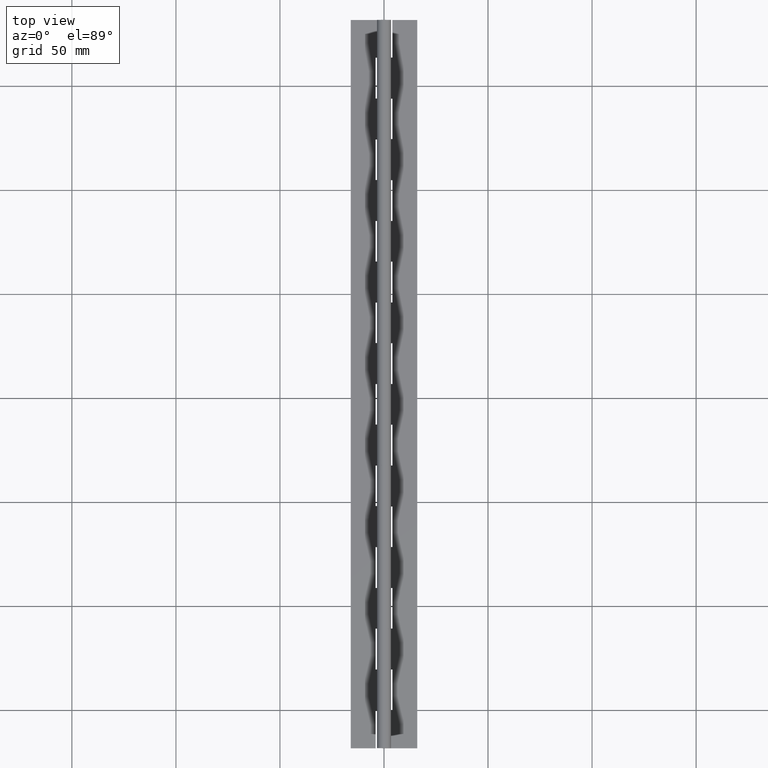
[diagram: clean part render]
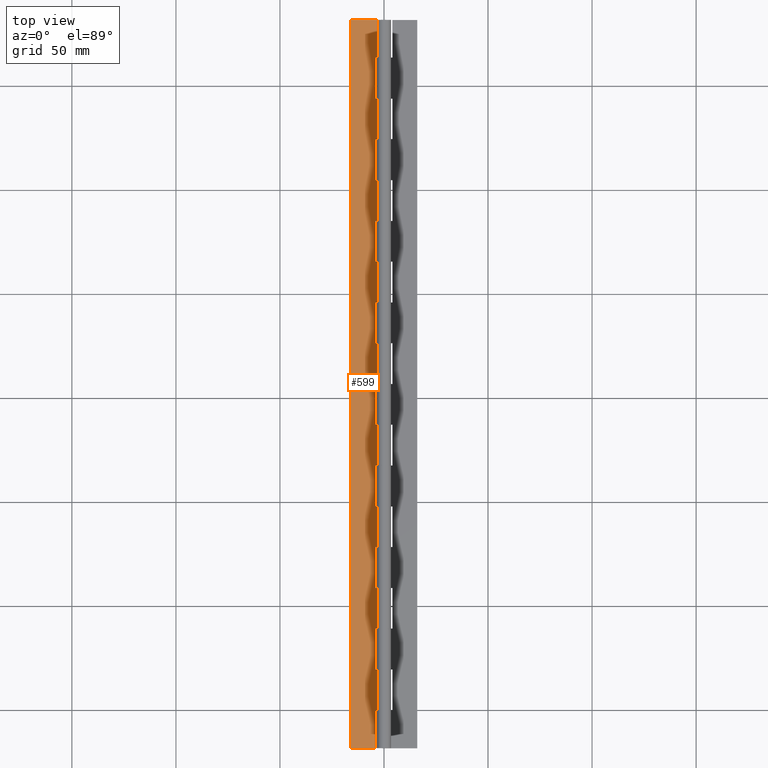
[diagram: same view with one face highlighted and labeled with its STEP entity id]
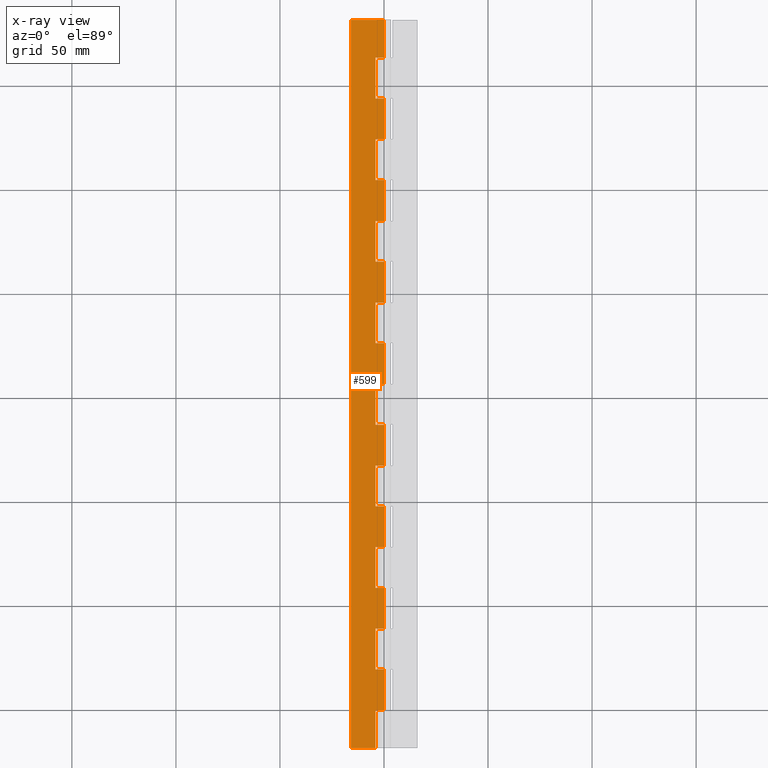
[diagram: x-ray of the same camera — body ghosted, the highlighted face saturated]
A machine part, top view. The second image highlights one B-rep face of the part: STEP entity #599.
The next image is the same camera in x-ray: the body ghosted, the highlighted face saturated — about 0% of this face is hidden behind the body in this view.
In plain terms, the highlighted planar face has unit normal (-0, 0, -1).
Its self-contained STEP definition (entity closure, byte-faithful):
#34 = DIRECTION ( 'NONE',  ( -0.0000000000000000000, -1.000000000000000000, -0.0000000000000000000 ) ) ;
#48 = DIRECTION ( 'NONE',  ( 1.000000000000000000, 0.0000000000000000000, -1.219727457417876900E-016 ) ) ;
#51 = VERTEX_POINT ( 'NONE', #2771 ) ;
#55 = VERTEX_POINT ( 'NONE', #231 ) ;
#57 = CARTESIAN_POINT ( 'NONE',  ( 2.143132568272414800E-016, 331.8000000000000100, -1.750000546904256100 ) ) ;
#59 = ORIENTED_EDGE ( 'NONE', *, *, #308, .F. ) ;
#80 = DIRECTION ( 'NONE',  ( 1.000000000000000000, 0.0000000000000000000, -1.219727457417876900E-016 ) ) ;
#96 = DIRECTION ( 'NONE',  ( -0.0000000000000000000, -1.000000000000000000, -0.0000000000000000000 ) ) ;
#109 = DIRECTION ( 'NONE',  ( -1.000000000000000000, 0.0000000000000000000, 1.219727457417876900E-016 ) ) ;
#113 = VERTEX_POINT ( 'NONE', #667 ) ;
#131 = DIRECTION ( 'NONE',  ( -0.0000000000000000000, -1.000000000000000000, -0.0000000000000000000 ) ) ;
#139 = VECTOR ( 'NONE', #80, 1000.000000000000000 ) ;
#143 = CARTESIAN_POINT ( 'NONE',  ( 2.143132568272414800E-016, 313.6000000000000200, -1.750000546904256100 ) ) ;
#153 = EDGE_CURVE ( 'NONE', #1683, #1378, #2992, .T. ) ;
#155 = VERTEX_POINT ( 'NONE', #1076 ) ;
#157 = VERTEX_POINT ( 'NONE', #1044 ) ;
#160 = VECTOR ( 'NONE', #2387, 1000.000000000000000 ) ;
#183 = CARTESIAN_POINT ( 'NONE',  ( 2.143132568272414800E-016, 313.6000000000000200, -1.750000546904256100 ) ) ;
#208 = EDGE_CURVE ( 'NONE', #576, #519, #2895, .T. ) ;
#224 = EDGE_CURVE ( 'NONE', #155, #1583, #1972, .T. ) ;
#231 = CARTESIAN_POINT ( 'NONE',  ( 2.143125705451388300E-016, 58.80000000000001800, -1.750000000000002400 ) ) ;
#237 = VECTOR ( 'NONE', #1516, 1000.000000000000000 ) ;
#253 = EDGE_CURVE ( 'NONE', #3056, #1239, #3502, .T. ) ;
#260 = LINE ( 'NONE', #3846, #1894 ) ;
#279 = VECTOR ( 'NONE', #3021, 1000.000000000000000 ) ;
#308 = EDGE_CURVE ( 'NONE', #3429, #805, #2516, .T. ) ;
#330 = VECTOR ( 'NONE', #1459, 1000.000000000000000 ) ;
#332 = LINE ( 'NONE', #2563, #966 ) ;
#373 = LINE ( 'NONE', #4078, #279 ) ;
#393 = CARTESIAN_POINT ( 'NONE',  ( 0.0000000000000000000, 176.4000000000000300, -1.750000000000002400 ) ) ;
#401 = LINE ( 'NONE', #183, #3768 ) ;
#454 = CARTESIAN_POINT ( 'NONE',  ( -3.999999824594459200, 215.6000000000000500, -1.750000000000002200 ) ) ;
#469 = DIRECTION ( 'NONE',  ( -0.0000000000000000000, -1.000000000000000000, -0.0000000000000000000 ) ) ;
#471 = ORIENTED_EDGE ( 'NONE', *, *, #2398, .T. ) ;
#478 = VERTEX_POINT ( 'NONE', #4029 ) ;
#489 = DIRECTION ( 'NONE',  ( 1.000000000000000000, 0.0000000000000000000, -1.219727457417876900E-016 ) ) ;
#505 = VERTEX_POINT ( 'NONE', #879 ) ;
#518 = VECTOR ( 'NONE', #1815, 1000.000000000000000 ) ;
#519 = VERTEX_POINT ( 'NONE', #548 ) ;
#525 = PLANE ( 'NONE',  #3368 ) ;
#536 = VECTOR ( 'NONE', #2267, 1000.000000000000000 ) ;
#548 = CARTESIAN_POINT ( 'NONE',  ( -3.999999824594461900, 274.4000000000000300, -1.750000000000002200 ) ) ;
#557 = EDGE_CURVE ( 'NONE', #911, #3251, #1717, .T. ) ;
#576 = VERTEX_POINT ( 'NONE', #3990 ) ;
#597 = VERTEX_POINT ( 'NONE', #1180 ) ;
#599 = ADVANCED_FACE ( 'NONE', ( #2464 ), #525, .F. ) ;
#667 = CARTESIAN_POINT ( 'NONE',  ( 2.143125705451388300E-016, 274.4000000000000300, -1.750000000000002400 ) ) ;
#684 = CARTESIAN_POINT ( 'NONE',  ( -3.999999824594459200, 137.2000000000000200, -1.750000000000002200 ) ) ;
#720 = EDGE_CURVE ( 'NONE', #1378, #3951, #993, .T. ) ;
#730 = DIRECTION ( 'NONE',  ( -0.0000000000000000000, -1.000000000000000000, -0.0000000000000000000 ) ) ;
#758 = VECTOR ( 'NONE', #2600, 1000.000000000000000 ) ;
#771 = DIRECTION ( 'NONE',  ( -1.327594496921025700E-016, 1.000000000000000000, 1.619303460211448100E-032 ) ) ;
#780 = CARTESIAN_POINT ( 'NONE',  ( 2.143125705451388300E-016, 137.2000000000000200, -1.750000000000002400 ) ) ;
#805 = VERTEX_POINT ( 'NONE', #2908 ) ;
#812 = VECTOR ( 'NONE', #1518, 1000.000000000000000 ) ;
#825 = ORIENTED_EDGE ( 'NONE', *, *, #153, .T. ) ;
#836 = CARTESIAN_POINT ( 'NONE',  ( -3.999999824594461900, 313.6000000000000200, -1.750000000000002000 ) ) ;
#848 = VECTOR ( 'NONE', #866, 1000.000000000000000 ) ;
#863 = LINE ( 'NONE', #3914, #2477 ) ;
#864 = LINE ( 'NONE', #3208, #758 ) ;
#866 = DIRECTION ( 'NONE',  ( -1.327594496921025700E-016, 1.000000000000000000, 1.619303460211448100E-032 ) ) ;
#876 = LINE ( 'NONE', #2485, #2489 ) ;
#879 = CARTESIAN_POINT ( 'NONE',  ( 2.143132568272414800E-016, 0.0000000000000000000, -1.750000546904256100 ) ) ;
#889 = DIRECTION ( 'NONE',  ( -1.327594496921025700E-016, 1.000000000000000000, 1.619303460211448100E-032 ) ) ;
#909 = LINE ( 'NONE', #1168, #812 ) ;
#911 = VERTEX_POINT ( 'NONE', #3820 ) ;
#935 = ORIENTED_EDGE ( 'NONE', *, *, #986, .T. ) ;
#939 = EDGE_CURVE ( 'NONE', #3092, #576, #373, .T. ) ;
#954 = VERTEX_POINT ( 'NONE', #57 ) ;
#966 = VECTOR ( 'NONE', #3169, 1000.000000000000000 ) ;
#970 = CARTESIAN_POINT ( 'NONE',  ( 2.143125705451388300E-016, 78.40000000000002000, -1.750000000000002400 ) ) ;
#986 = EDGE_CURVE ( 'NONE', #2424, #3056, #1521, .T. ) ;
#990 = EDGE_CURVE ( 'NONE', #4060, #805, #1910, .T. ) ;
#993 = LINE ( 'NONE', #1039, #139 ) ;
#1022 = LINE ( 'NONE', #2674, #1794 ) ;
#1039 = CARTESIAN_POINT ( 'NONE',  ( 0.0000000000000000000, 313.6000000000000200, -1.750000000000002400 ) ) ;
#1044 = CARTESIAN_POINT ( 'NONE',  ( 2.143125705451388300E-016, 117.6000000000000100, -1.750000000000002400 ) ) ;
#1053 = VERTEX_POINT ( 'NONE', #2471 ) ;
#1057 = CARTESIAN_POINT ( 'NONE',  ( 2.143132568272414800E-016, 313.6000000000000200, -1.750000546904256100 ) ) ;
#1063 = CARTESIAN_POINT ( 'NONE',  ( -3.999999824594461900, 196.0000000000000300, -1.750000000000002200 ) ) ;
#1076 = CARTESIAN_POINT ( 'NONE',  ( -3.999999824594464600, -18.19999999999999900, -1.750000410178196500 ) ) ;
#1081 = CARTESIAN_POINT ( 'NONE',  ( 0.0000000000000000000, 215.6000000000000500, -1.750000000000002400 ) ) ;
#1103 = VECTOR ( 'NONE', #1393, 1000.000000000000100 ) ;
#1113 = ORIENTED_EDGE ( 'NONE', *, *, #2240, .F. ) ;
#1130 = DIRECTION ( 'NONE',  ( -1.000000000000000000, 0.0000000000000000000, 1.219727457417876900E-016 ) ) ;
#1145 = ORIENTED_EDGE ( 'NONE', *, *, #1524, .F. ) ;
#1157 = CARTESIAN_POINT ( 'NONE',  ( 2.143125705451388300E-016, 98.00000000000002800, -1.750000000000002400 ) ) ;
#1168 = CARTESIAN_POINT ( 'NONE',  ( -3.999999824594477400, 313.6000000000000200, -1.750000000000002000 ) ) ;
#1180 = CARTESIAN_POINT ( 'NONE',  ( -3.999999824594459200, 176.4000000000000300, -1.750000000000002200 ) ) ;
#1195 = DIRECTION ( 'NONE',  ( -1.000000000000000000, 0.0000000000000000000, 1.219727457417876900E-016 ) ) ;
#1215 = VECTOR ( 'NONE', #1130, 1000.000000000000000 ) ;
#1218 = CARTESIAN_POINT ( 'NONE',  ( -3.999999824594467200, 313.6000000000000200, -1.750000000000002000 ) ) ;
#1221 = CARTESIAN_POINT ( 'NONE',  ( -3.999999824594461900, 117.6000000000000100, -1.750000000000002200 ) ) ;
#1239 = VERTEX_POINT ( 'NONE', #1221 ) ;
#1269 = ORIENTED_EDGE ( 'NONE', *, *, #1519, .T. ) ;
#1278 = CARTESIAN_POINT ( 'NONE',  ( -3.999999824594523600, 313.6000000000000200, -1.750000000000002000 ) ) ;
#1301 = VECTOR ( 'NONE', #889, 1000.000000000000000 ) ;
#1311 = CARTESIAN_POINT ( 'NONE',  ( 2.143132568272414800E-016, -18.19999999999999900, -1.750000546904256100 ) ) ;
#1320 = LINE ( 'NONE', #2663, #3718 ) ;
#1378 = VERTEX_POINT ( 'NONE', #2314 ) ;
#1393 = DIRECTION ( 'NONE',  ( -0.9999999999999994400, -0.0000000000000000000, 3.418151635014737200E-008 ) ) ;
#1396 = CARTESIAN_POINT ( 'NONE',  ( -3.999999824594461900, 78.40000000000000600, -1.750000000000002200 ) ) ;
#1405 = LINE ( 'NONE', #1641, #2979 ) ;
#1458 = VERTEX_POINT ( 'NONE', #780 ) ;
#1459 = DIRECTION ( 'NONE',  ( -1.327594496921025700E-016, 1.000000000000000000, 1.619303460211448100E-032 ) ) ;
#1462 = CARTESIAN_POINT ( 'NONE',  ( 0.0000000000000000000, 137.2000000000000200, -1.750000000000002400 ) ) ;
#1468 = CARTESIAN_POINT ( 'NONE',  ( 0.0000000000000000000, 196.0000000000000300, -1.750000000000002400 ) ) ;
#1489 = DIRECTION ( 'NONE',  ( 1.000000000000000000, 0.0000000000000000000, -1.219727457417876900E-016 ) ) ;
#1503 = CARTESIAN_POINT ( 'NONE',  ( -3.999999824594488100, 313.6000000000000200, -1.750000000000002000 ) ) ;
#1504 = DIRECTION ( 'NONE',  ( -1.219727457417876900E-016, 0.0000000000000000000, -1.000000000000000000 ) ) ;
#1516 = DIRECTION ( 'NONE',  ( -1.327594496921025700E-016, 1.000000000000000000, 1.619303460211448100E-032 ) ) ;
#1518 = DIRECTION ( 'NONE',  ( -1.327594496921025700E-016, 1.000000000000000000, 1.619303460211448100E-032 ) ) ;
#1519 = EDGE_CURVE ( 'NONE', #4067, #3860, #3163, .T. ) ;
#1520 = EDGE_CURVE ( 'NONE', #51, #911, #3079, .T. ) ;
#1521 = LINE ( 'NONE', #3944, #2646 ) ;
#1524 = EDGE_CURVE ( 'NONE', #1053, #954, #1405, .T. ) ;
#1533 = ORIENTED_EDGE ( 'NONE', *, *, #3022, .T. ) ;
#1538 = LINE ( 'NONE', #2916, #2383 ) ;
#1550 = CARTESIAN_POINT ( 'NONE',  ( 2.143125705451388300E-016, 156.8000000000000100, -1.750000000000002400 ) ) ;
#1583 = VERTEX_POINT ( 'NONE', #2151 ) ;
#1591 = LINE ( 'NONE', #393, #3149 ) ;
#1600 = CARTESIAN_POINT ( 'NONE',  ( 2.143132568272414800E-016, 39.20000000000001000, -1.750000546904256100 ) ) ;
#1606 = DIRECTION ( 'NONE',  ( 0.9999999999999994400, 0.0000000000000000000, -3.418151635014737200E-008 ) ) ;
#1641 = CARTESIAN_POINT ( 'NONE',  ( -15.99999982459446300, 331.8000000000000100, -1.750000000000000400 ) ) ;
#1662 = DIRECTION ( 'NONE',  ( -0.0000000000000000000, -1.000000000000000000, -0.0000000000000000000 ) ) ;
#1669 = EDGE_CURVE ( 'NONE', #1992, #2045, #3122, .T. ) ;
#1673 = VERTEX_POINT ( 'NONE', #3110 ) ;
#1683 = VERTEX_POINT ( 'NONE', #3120 ) ;
#1706 = ORIENTED_EDGE ( 'NONE', *, *, #253, .T. ) ;
#1717 = LINE ( 'NONE', #3386, #848 ) ;
#1735 = ORIENTED_EDGE ( 'NONE', *, *, #3089, .T. ) ;
#1777 = ORIENTED_EDGE ( 'NONE', *, *, #208, .T. ) ;
#1794 = VECTOR ( 'NONE', #96, 1000.000000000000000 ) ;
#1815 = DIRECTION ( 'NONE',  ( -1.327594496921025700E-016, 1.000000000000000000, 1.619303460211448100E-032 ) ) ;
#1816 = CARTESIAN_POINT ( 'NONE',  ( 2.143132568272414800E-016, 313.6000000000000200, -1.750000546904256100 ) ) ;
#1845 = LINE ( 'NONE', #3078, #3068 ) ;
#1848 = CARTESIAN_POINT ( 'NONE',  ( 0.0000000000000000000, 235.2000000000000500, -1.750000000000002400 ) ) ;
#1894 = VECTOR ( 'NONE', #3549, 1000.000000000000000 ) ;
#1898 = VERTEX_POINT ( 'NONE', #454 ) ;
#1907 = ORIENTED_EDGE ( 'NONE', *, *, #2653, .F. ) ;
#1910 = LINE ( 'NONE', #1468, #2263 ) ;
#1972 = LINE ( 'NONE', #1311, #1103 ) ;
#1981 = VECTOR ( 'NONE', #3636, 1000.000000000000000 ) ;
#1986 = LINE ( 'NONE', #1081, #160 ) ;
#1992 = VERTEX_POINT ( 'NONE', #3967 ) ;
#1996 = CARTESIAN_POINT ( 'NONE',  ( 0.0000000000000000000, 19.60000000000000500, -1.750000000000002400 ) ) ;
#2009 = DIRECTION ( 'NONE',  ( 1.000000000000000000, 0.0000000000000000000, -1.219727457417876900E-016 ) ) ;
#2024 = EDGE_CURVE ( 'NONE', #1673, #4067, #1845, .T. ) ;
#2028 = VERTEX_POINT ( 'NONE', #3995 ) ;
#2045 = VERTEX_POINT ( 'NONE', #3393 ) ;
#2051 = LINE ( 'NONE', #3671, #518 ) ;
#2087 = VERTEX_POINT ( 'NONE', #1550 ) ;
#2096 = LINE ( 'NONE', #3879, #2818 ) ;
#2115 = ORIENTED_EDGE ( 'NONE', *, *, #939, .T. ) ;
#2118 = DIRECTION ( 'NONE',  ( -1.000000000000000000, 0.0000000000000000000, 1.219727457417876900E-016 ) ) ;
#2119 = EDGE_CURVE ( 'NONE', #954, #3951, #3918, .T. ) ;
#2151 = CARTESIAN_POINT ( 'NONE',  ( -15.99999982459446300, -18.19999999999999900, -1.750000000000000400 ) ) ;
#2185 = ORIENTED_EDGE ( 'NONE', *, *, #557, .T. ) ;
#2204 = ORIENTED_EDGE ( 'NONE', *, *, #3042, .T. ) ;
#2208 = ORIENTED_EDGE ( 'NONE', *, *, #3321, .T. ) ;
#2217 = EDGE_CURVE ( 'NONE', #1458, #157, #260, .T. ) ;
#2240 = EDGE_CURVE ( 'NONE', #51, #505, #2736, .T. ) ;
#2245 = ORIENTED_EDGE ( 'NONE', *, *, #3459, .T. ) ;
#2247 = EDGE_CURVE ( 'NONE', #2424, #3860, #1022, .T. ) ;
#2255 = CARTESIAN_POINT ( 'NONE',  ( 2.143125705451388300E-016, 176.4000000000000300, -1.750000000000002400 ) ) ;
#2259 = VECTOR ( 'NONE', #2009, 1000.000000000000000 ) ;
#2263 = VECTOR ( 'NONE', #489, 1000.000000000000000 ) ;
#2267 = DIRECTION ( 'NONE',  ( -1.000000000000000000, 0.0000000000000000000, 1.219727457417876900E-016 ) ) ;
#2304 = CARTESIAN_POINT ( 'NONE',  ( -3.999999824594463700, 0.0000000000000000000, -1.750000000000002200 ) ) ;
#2308 = CARTESIAN_POINT ( 'NONE',  ( 0.0000000000000000000, 0.0000000000000000000, -1.750000000000002400 ) ) ;
#2314 = CARTESIAN_POINT ( 'NONE',  ( -3.999999824594461900, 313.6000000000000200, -1.750000000000002200 ) ) ;
#2378 = EDGE_CURVE ( 'NONE', #2028, #113, #401, .T. ) ;
#2383 = VECTOR ( 'NONE', #1662, 1000.000000000000000 ) ;
#2387 = DIRECTION ( 'NONE',  ( -1.000000000000000000, 0.0000000000000000000, 1.219727457417876900E-016 ) ) ;
#2388 = VECTOR ( 'NONE', #48, 1000.000000000000000 ) ;
#2398 = EDGE_CURVE ( 'NONE', #1898, #1992, #2051, .T. ) ;
#2407 = VECTOR ( 'NONE', #1489, 1000.000000000000000 ) ;
#2418 = VECTOR ( 'NONE', #2637, 1000.000000000000000 ) ;
#2424 = VERTEX_POINT ( 'NONE', #1157 ) ;
#2432 = ORIENTED_EDGE ( 'NONE', *, *, #3930, .T. ) ;
#2448 = DIRECTION ( 'NONE',  ( -0.0000000000000000000, -1.000000000000000000, -0.0000000000000000000 ) ) ;
#2457 = DIRECTION ( 'NONE',  ( -1.327594496921025700E-016, 1.000000000000000000, 1.619303460211448100E-032 ) ) ;
#2464 = FACE_OUTER_BOUND ( 'NONE', #3395, .T. ) ;
#2471 = CARTESIAN_POINT ( 'NONE',  ( -15.99999982459446300, 331.8000000000000100, -1.750000000000000400 ) ) ;
#2477 = VECTOR ( 'NONE', #131, 1000.000000000000000 ) ;
#2485 = CARTESIAN_POINT ( 'NONE',  ( 0.0000000000000000000, 294.0000000000000600, -1.750000000000002400 ) ) ;
#2489 = VECTOR ( 'NONE', #1195, 1000.000000000000000 ) ;
#2495 = ORIENTED_EDGE ( 'NONE', *, *, #2217, .F. ) ;
#2502 = EDGE_CURVE ( 'NONE', #2028, #1683, #876, .T. ) ;
#2516 = LINE ( 'NONE', #1816, #2418 ) ;
#2521 = VERTEX_POINT ( 'NONE', #1600 ) ;
#2563 = CARTESIAN_POINT ( 'NONE',  ( 0.0000000000000000000, 117.6000000000000100, -1.750000000000002400 ) ) ;
#2565 = ORIENTED_EDGE ( 'NONE', *, *, #2378, .F. ) ;
#2600 = DIRECTION ( 'NONE',  ( 1.000000000000000000, 0.0000000000000000000, -1.219727457417876900E-016 ) ) ;
#2615 = ORIENTED_EDGE ( 'NONE', *, *, #3084, .T. ) ;
#2618 = VECTOR ( 'NONE', #771, 1000.000000000000000 ) ;
#2624 = VECTOR ( 'NONE', #730, 1000.000000000000000 ) ;
#2637 = DIRECTION ( 'NONE',  ( -0.0000000000000000000, -1.000000000000000000, -0.0000000000000000000 ) ) ;
#2646 = VECTOR ( 'NONE', #2118, 1000.000000000000000 ) ;
#2653 = EDGE_CURVE ( 'NONE', #3092, #2045, #3525, .T. ) ;
#2663 = CARTESIAN_POINT ( 'NONE',  ( 0.0000000000000000000, 156.8000000000000100, -1.750000000000002400 ) ) ;
#2674 = CARTESIAN_POINT ( 'NONE',  ( 2.143132568272414800E-016, 313.6000000000000200, -1.750000546904256100 ) ) ;
#2693 = CARTESIAN_POINT ( 'NONE',  ( 2.143125705451388300E-016, 254.8000000000000400, -1.750000000000002400 ) ) ;
#2709 = ORIENTED_EDGE ( 'NONE', *, *, #3819, .T. ) ;
#2715 = LINE ( 'NONE', #1278, #2803 ) ;
#2719 = ORIENTED_EDGE ( 'NONE', *, *, #3366, .T. ) ;
#2727 = LINE ( 'NONE', #3284, #2618 ) ;
#2736 = LINE ( 'NONE', #1057, #2624 ) ;
#2743 = ORIENTED_EDGE ( 'NONE', *, *, #2932, .T. ) ;
#2744 = EDGE_CURVE ( 'NONE', #3668, #597, #1591, .T. ) ;
#2771 = CARTESIAN_POINT ( 'NONE',  ( 0.0000000000000000000, 19.60000000000000500, -1.750000546904256100 ) ) ;
#2776 = ORIENTED_EDGE ( 'NONE', *, *, #1520, .T. ) ;
#2803 = VECTOR ( 'NONE', #3457, 1000.000000000000000 ) ;
#2818 = VECTOR ( 'NONE', #109, 1000.000000000000000 ) ;
#2895 = LINE ( 'NONE', #1218, #330 ) ;
#2901 = VECTOR ( 'NONE', #469, 1000.000000000000000 ) ;
#2908 = CARTESIAN_POINT ( 'NONE',  ( 2.143125705451388300E-016, 196.0000000000000300, -1.750000000000002400 ) ) ;
#2916 = CARTESIAN_POINT ( 'NONE',  ( 2.143132568272414800E-016, 313.6000000000000200, -1.750000546904256100 ) ) ;
#2932 = EDGE_CURVE ( 'NONE', #3758, #505, #3190, .T. ) ;
#2953 = VERTEX_POINT ( 'NONE', #684 ) ;
#2971 = DIRECTION ( 'NONE',  ( 1.000000000000000000, 0.0000000000000000000, -1.219727457417876900E-016 ) ) ;
#2979 = VECTOR ( 'NONE', #1606, 1000.000000000000100 ) ;
#2992 = LINE ( 'NONE', #836, #1301 ) ;
#3003 = LINE ( 'NONE', #143, #2901 ) ;
#3010 = ORIENTED_EDGE ( 'NONE', *, *, #2744, .T. ) ;
#3021 = DIRECTION ( 'NONE',  ( -1.000000000000000000, 0.0000000000000000000, 1.219727457417876900E-016 ) ) ;
#3022 = EDGE_CURVE ( 'NONE', #478, #2087, #1320, .T. ) ;
#3042 = EDGE_CURVE ( 'NONE', #55, #1673, #2096, .T. ) ;
#3056 = VERTEX_POINT ( 'NONE', #3266 ) ;
#3057 = CARTESIAN_POINT ( 'NONE',  ( 2.143125705451388300E-016, 215.6000000000000500, -1.750000000000002400 ) ) ;
#3068 = VECTOR ( 'NONE', #2457, 1000.000000000000000 ) ;
#3078 = CARTESIAN_POINT ( 'NONE',  ( -3.999999824594493000, 313.6000000000000200, -1.750000000000002000 ) ) ;
#3079 = LINE ( 'NONE', #1996, #536 ) ;
#3084 = EDGE_CURVE ( 'NONE', #3429, #1898, #1986, .T. ) ;
#3089 = EDGE_CURVE ( 'NONE', #2953, #478, #2727, .T. ) ;
#3092 = VERTEX_POINT ( 'NONE', #2693 ) ;
#3096 = ORIENTED_EDGE ( 'NONE', *, *, #1669, .T. ) ;
#3097 = ORIENTED_EDGE ( 'NONE', *, *, #3962, .F. ) ;
#3110 = CARTESIAN_POINT ( 'NONE',  ( -3.999999824594459200, 58.80000000000000400, -1.750000000000002200 ) ) ;
#3120 = CARTESIAN_POINT ( 'NONE',  ( -3.999999824594459200, 294.0000000000000600, -1.750000000000002200 ) ) ;
#3122 = LINE ( 'NONE', #1848, #2407 ) ;
#3128 = CARTESIAN_POINT ( 'NONE',  ( 2.143132568272414800E-016, 313.6000000000000200, -1.750000546904256100 ) ) ;
#3149 = VECTOR ( 'NONE', #3258, 1000.000000000000000 ) ;
#3163 = LINE ( 'NONE', #3567, #2259 ) ;
#3169 = DIRECTION ( 'NONE',  ( 1.000000000000000000, 0.0000000000000000000, -1.219727457417876900E-016 ) ) ;
#3190 = LINE ( 'NONE', #2308, #2388 ) ;
#3208 = CARTESIAN_POINT ( 'NONE',  ( 0.0000000000000000000, 39.20000000000001000, -1.750000000000002400 ) ) ;
#3212 = ORIENTED_EDGE ( 'NONE', *, *, #3844, .T. ) ;
#3251 = VERTEX_POINT ( 'NONE', #3557 ) ;
#3258 = DIRECTION ( 'NONE',  ( -1.000000000000000000, 0.0000000000000000000, 1.219727457417876900E-016 ) ) ;
#3266 = CARTESIAN_POINT ( 'NONE',  ( -3.999999824594459200, 98.00000000000001400, -1.750000000000002200 ) ) ;
#3279 = ORIENTED_EDGE ( 'NONE', *, *, #2119, .F. ) ;
#3284 = CARTESIAN_POINT ( 'NONE',  ( -3.999999824594482800, 313.6000000000000200, -1.750000000000002000 ) ) ;
#3321 = EDGE_CURVE ( 'NONE', #1053, #1583, #863, .T. ) ;
#3353 = EDGE_CURVE ( 'NONE', #3668, #2087, #3003, .T. ) ;
#3362 = DIRECTION ( 'NONE',  ( -1.000000000000000000, 0.0000000000000000000, 1.219727457417876900E-016 ) ) ;
#3366 = EDGE_CURVE ( 'NONE', #1458, #2953, #3711, .T. ) ;
#3368 = AXIS2_PLACEMENT_3D ( 'NONE', #3981, #1504, #3362 ) ;
#3386 = CARTESIAN_POINT ( 'NONE',  ( -3.999999824594498300, 313.6000000000000200, -1.750000000000002000 ) ) ;
#3392 = EDGE_CURVE ( 'NONE', #519, #113, #3618, .T. ) ;
#3393 = CARTESIAN_POINT ( 'NONE',  ( 2.143125705451388300E-016, 235.2000000000000500, -1.750000000000002400 ) ) ;
#3395 = EDGE_LOOP ( 'NONE', ( #825, #3897, #3279, #1145, #2208, #4040, #2709, #2743, #1113, #2776, #2185, #2432, #3097, #2204, #3801, #1269, #3715, #935, #1706, #3212, #2495, #2719, #1735, #1533, #3961, #3010, #2245, #3706, #59, #2615, #471, #3096, #1907, #2115, #1777, #3467, #2565, #3851 ) ) ;
#3427 = DIRECTION ( 'NONE',  ( -0.0000000000000000000, -1.000000000000000000, -0.0000000000000000000 ) ) ;
#3428 = VECTOR ( 'NONE', #34, 1000.000000000000000 ) ;
#3429 = VERTEX_POINT ( 'NONE', #3057 ) ;
#3457 = DIRECTION ( 'NONE',  ( -1.906289534040447200E-016, 1.000000000000000000, 2.325153686457463900E-032 ) ) ;
#3459 = EDGE_CURVE ( 'NONE', #597, #4060, #909, .T. ) ;
#3467 = ORIENTED_EDGE ( 'NONE', *, *, #3392, .T. ) ;
#3502 = LINE ( 'NONE', #1503, #237 ) ;
#3518 = CARTESIAN_POINT ( 'NONE',  ( 2.143125705451388300E-016, 313.6000000000000200, -1.750000000000002400 ) ) ;
#3525 = LINE ( 'NONE', #3821, #3428 ) ;
#3549 = DIRECTION ( 'NONE',  ( -0.0000000000000000000, -1.000000000000000000, -0.0000000000000000000 ) ) ;
#3557 = CARTESIAN_POINT ( 'NONE',  ( -3.999999824594461900, 39.20000000000000300, -1.750000000000002200 ) ) ;
#3567 = CARTESIAN_POINT ( 'NONE',  ( 0.0000000000000000000, 78.40000000000002000, -1.750000000000002400 ) ) ;
#3618 = LINE ( 'NONE', #3940, #1981 ) ;
#3636 = DIRECTION ( 'NONE',  ( 1.000000000000000000, 0.0000000000000000000, -1.219727457417876900E-016 ) ) ;
#3668 = VERTEX_POINT ( 'NONE', #2255 ) ;
#3671 = CARTESIAN_POINT ( 'NONE',  ( -3.999999824594472100, 313.6000000000000200, -1.750000000000002000 ) ) ;
#3706 = ORIENTED_EDGE ( 'NONE', *, *, #990, .T. ) ;
#3711 = LINE ( 'NONE', #1462, #1215 ) ;
#3715 = ORIENTED_EDGE ( 'NONE', *, *, #2247, .F. ) ;
#3718 = VECTOR ( 'NONE', #2971, 1000.000000000000000 ) ;
#3758 = VERTEX_POINT ( 'NONE', #2304 ) ;
#3768 = VECTOR ( 'NONE', #2448, 1000.000000000000000 ) ;
#3801 = ORIENTED_EDGE ( 'NONE', *, *, #2024, .T. ) ;
#3815 = VECTOR ( 'NONE', #3427, 1000.000000000000000 ) ;
#3819 = EDGE_CURVE ( 'NONE', #155, #3758, #2715, .T. ) ;
#3820 = CARTESIAN_POINT ( 'NONE',  ( -3.999999824594459200, 19.60000000000000100, -1.750000000000002200 ) ) ;
#3821 = CARTESIAN_POINT ( 'NONE',  ( 2.143132568272414800E-016, 313.6000000000000200, -1.750000546904256100 ) ) ;
#3844 = EDGE_CURVE ( 'NONE', #1239, #157, #332, .T. ) ;
#3846 = CARTESIAN_POINT ( 'NONE',  ( 2.143132568272414800E-016, 313.6000000000000200, -1.750000546904256100 ) ) ;
#3851 = ORIENTED_EDGE ( 'NONE', *, *, #2502, .T. ) ;
#3860 = VERTEX_POINT ( 'NONE', #970 ) ;
#3879 = CARTESIAN_POINT ( 'NONE',  ( 0.0000000000000000000, 58.80000000000001800, -1.750000000000002400 ) ) ;
#3897 = ORIENTED_EDGE ( 'NONE', *, *, #720, .T. ) ;
#3914 = CARTESIAN_POINT ( 'NONE',  ( -15.99999982459446300, 313.6000000000000200, -1.750000000000000400 ) ) ;
#3918 = LINE ( 'NONE', #3128, #3815 ) ;
#3930 = EDGE_CURVE ( 'NONE', #3251, #2521, #864, .T. ) ;
#3940 = CARTESIAN_POINT ( 'NONE',  ( 0.0000000000000000000, 274.4000000000000300, -1.750000000000002400 ) ) ;
#3944 = CARTESIAN_POINT ( 'NONE',  ( 0.0000000000000000000, 98.00000000000002800, -1.750000000000002400 ) ) ;
#3951 = VERTEX_POINT ( 'NONE', #3518 ) ;
#3961 = ORIENTED_EDGE ( 'NONE', *, *, #3353, .F. ) ;
#3962 = EDGE_CURVE ( 'NONE', #55, #2521, #1538, .T. ) ;
#3967 = CARTESIAN_POINT ( 'NONE',  ( -3.999999824594461900, 235.2000000000000500, -1.750000000000002200 ) ) ;
#3981 = CARTESIAN_POINT ( 'NONE',  ( 0.0000000000000000000, 313.6000000000000200, -1.750000000000002400 ) ) ;
#3990 = CARTESIAN_POINT ( 'NONE',  ( -3.999999824594459200, 254.8000000000000400, -1.750000000000002200 ) ) ;
#3995 = CARTESIAN_POINT ( 'NONE',  ( 2.143125705451388300E-016, 294.0000000000000600, -1.750000000000002400 ) ) ;
#4029 = CARTESIAN_POINT ( 'NONE',  ( -3.999999824594461900, 156.8000000000000100, -1.750000000000002200 ) ) ;
#4040 = ORIENTED_EDGE ( 'NONE', *, *, #224, .F. ) ;
#4060 = VERTEX_POINT ( 'NONE', #1063 ) ;
#4067 = VERTEX_POINT ( 'NONE', #1396 ) ;
#4078 = CARTESIAN_POINT ( 'NONE',  ( 0.0000000000000000000, 254.8000000000000400, -1.750000000000002400 ) ) ;